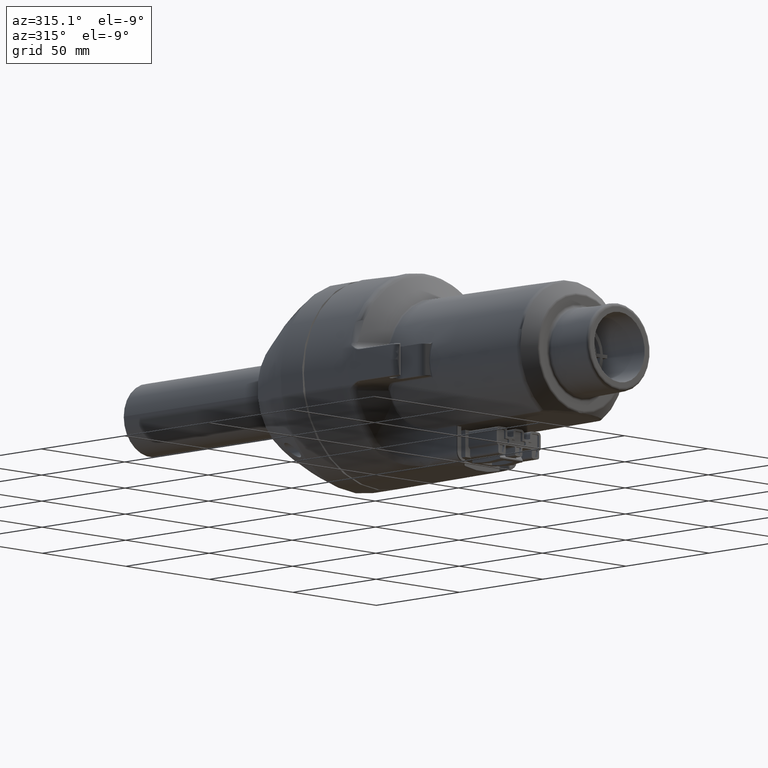
[diagram: clean part render]
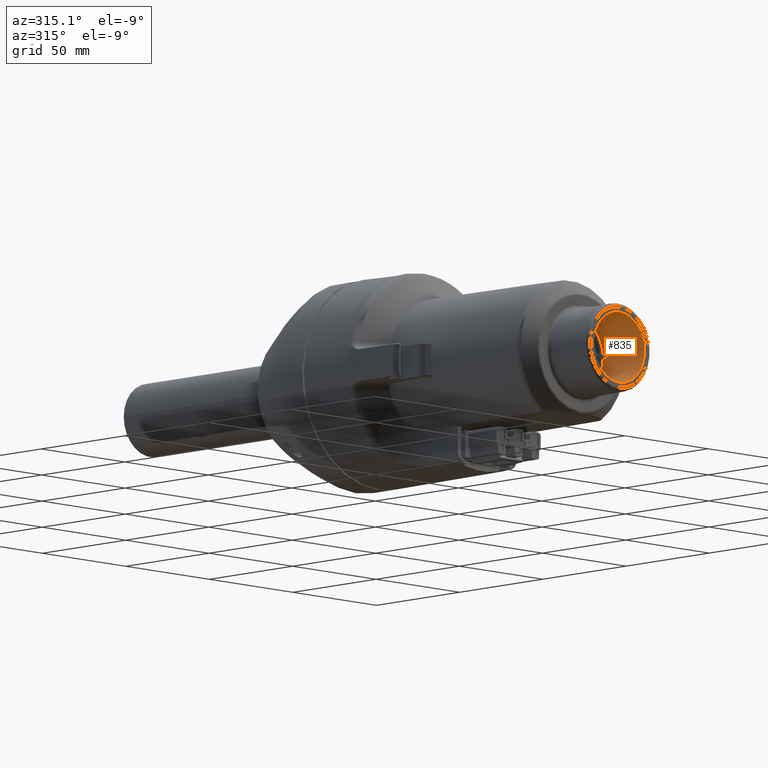
[diagram: same view with one face highlighted and labeled with its STEP entity id]
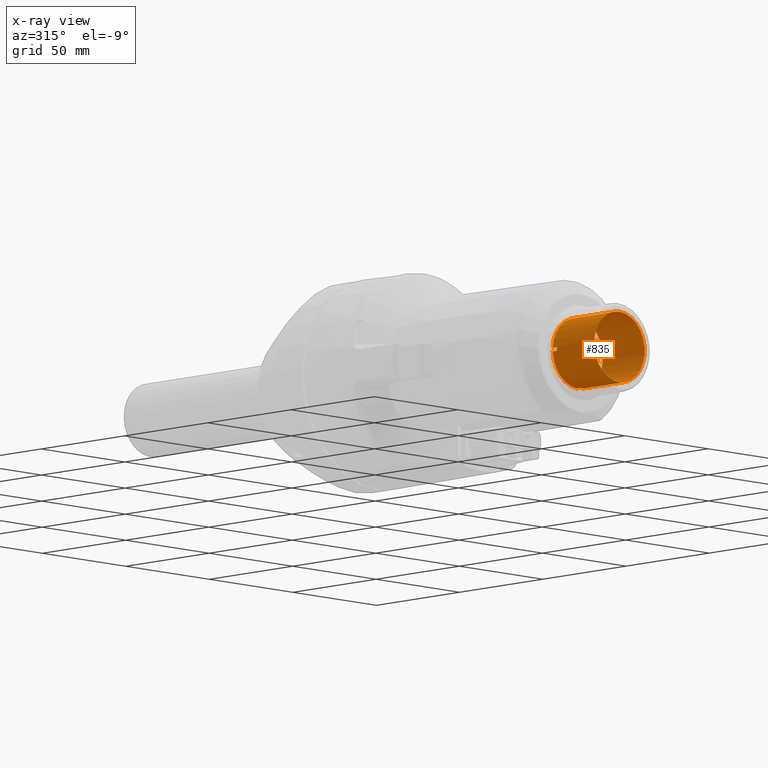
[diagram: x-ray of the same camera — body ghosted, the highlighted face saturated]
A machine part, auxiliary view. The second image highlights one B-rep face of the part: STEP entity #835.
The next image is the same camera in x-ray: the body ghosted, the highlighted face saturated — about 0% of this face is hidden behind the body in this view.
In plain terms, the highlighted cylindrical surface (bore or boss wall) has radius 15.1245 mm, axis along (-0, 1, -0).
Its self-contained STEP definition (entity closure, byte-faithful):
#835 = ADVANCED_FACE( '', ( #2260, #2261 ), #2262, .F. );
#2260 = FACE_OUTER_BOUND( '', #4825, .T. );
#2261 = FACE_OUTER_BOUND( '', #4826, .T. );
#2262 = CYLINDRICAL_SURFACE( '', #4827, 15.1244999999997 );
#4825 = EDGE_LOOP( '', ( #11385, #11386, #11387, #11388, #11389, #11390, #11391, #11392, #11393, #11394, #11395, #11396, #11397, #11398, #11399, #11400 ) );
#4826 = EDGE_LOOP( '', ( #11401 ) );
#4827 = AXIS2_PLACEMENT_3D( '', #11402, #11403, #11404 );
#11385 = ORIENTED_EDGE( '', *, *, #17066, .F. );
#11386 = ORIENTED_EDGE( '', *, *, #17067, .F. );
#11387 = ORIENTED_EDGE( '', *, *, #17068, .F. );
#11388 = ORIENTED_EDGE( '', *, *, #17069, .F. );
#11389 = ORIENTED_EDGE( '', *, *, #17070, .F. );
#11390 = ORIENTED_EDGE( '', *, *, #17047, .F. );
#11391 = ORIENTED_EDGE( '', *, *, #17071, .F. );
#11392 = ORIENTED_EDGE( '', *, *, #17072, .F. );
#11393 = ORIENTED_EDGE( '', *, *, #17073, .F. );
#11394 = ORIENTED_EDGE( '', *, *, #17074, .F. );
#11395 = ORIENTED_EDGE( '', *, *, #17075, .F. );
#11396 = ORIENTED_EDGE( '', *, *, #17076, .F. );
#11397 = ORIENTED_EDGE( '', *, *, #17077, .F. );
#11398 = ORIENTED_EDGE( '', *, *, #17078, .F. );
#11399 = ORIENTED_EDGE( '', *, *, #17079, .F. );
#11400 = ORIENTED_EDGE( '', *, *, #17080, .F. );
#11401 = ORIENTED_EDGE( '', *, *, #17081, .F. );
#11402 = CARTESIAN_POINT( '', ( 4.10216834365808E-011, 48.1236381961938, 4.11142542702602E-011 ) );
#11403 = DIRECTION( '', ( -0.000000000000000, 1.00000000000000, -0.000000000000000 ) );
#11404 = DIRECTION( '', ( 0.000000000000000, 0.000000000000000, 1.00000000000000 ) );
#17047 = EDGE_CURVE( '', #19833, #19834, #19835, .T. );
#17066 = EDGE_CURVE( '', #19866, #19867, #19868, .T. );
#17067 = EDGE_CURVE( '', #19869, #19866, #19870, .T. );
#17068 = EDGE_CURVE( '', #19871, #19869, #19872, .T. );
#17069 = EDGE_CURVE( '', #19873, #19871, #19874, .T. );
#17070 = EDGE_CURVE( '', #19834, #19873, #19875, .T. );
#17071 = EDGE_CURVE( '', #19876, #19833, #19877, .T. );
#17072 = EDGE_CURVE( '', #19878, #19876, #19879, .F. );
#17073 = EDGE_CURVE( '', #19880, #19878, #19881, .T. );
#17074 = EDGE_CURVE( '', #19882, #19880, #19883, .T. );
#17075 = EDGE_CURVE( '', #19884, #19882, #19885, .T. );
#17076 = EDGE_CURVE( '', #19886, #19884, #19887, .T. );
#17077 = EDGE_CURVE( '', #19888, #19886, #19889, .T. );
#17078 = EDGE_CURVE( '', #19890, #19888, #19891, .T. );
#17079 = EDGE_CURVE( '', #19892, #19890, #19893, .T. );
#17080 = EDGE_CURVE( '', #19867, #19892, #19894, .T. );
#17081 = EDGE_CURVE( '', #19895, #19895, #19896, .T. );
#19833 = VERTEX_POINT( '', #23998 );
#19834 = VERTEX_POINT( '', #23999 );
#19835 = LINE( '', #24000, #24001 );
#19866 = VERTEX_POINT( '', #24042 );
#19867 = VERTEX_POINT( '', #24043 );
#19868 = CIRCLE( '', #24044, 15.1244999999997 );
#19869 = VERTEX_POINT( '', #24045 );
#19870 = LINE( '', #24046, #24047 );
#19871 = VERTEX_POINT( '', #24048 );
#19872 = CIRCLE( '', #24049, 15.1244999999997 );
#19873 = VERTEX_POINT( '', #24050 );
#19874 = LINE( '', #24051, #24052 );
#19875 = CIRCLE( '', #24053, 15.1244999999997 );
#19876 = VERTEX_POINT( '', #24054 );
#19877 = CIRCLE( '', #24055, 15.1244999999997 );
#19878 = VERTEX_POINT( '', #24056 );
#19879 = LINE( '', #24057, #24058 );
#19880 = VERTEX_POINT( '', #24059 );
#19881 = CIRCLE( '', #24060, 15.1244999999997 );
#19882 = VERTEX_POINT( '', #24061 );
#19883 = LINE( '', #24062, #24063 );
#19884 = VERTEX_POINT( '', #24064 );
#19885 = CIRCLE( '', #24065, 15.1244999999997 );
#19886 = VERTEX_POINT( '', #24066 );
#19887 = LINE( '', #24067, #24068 );
#19888 = VERTEX_POINT( '', #24069 );
#19889 = CIRCLE( '', #24070, 15.1244999999997 );
#19890 = VERTEX_POINT( '', #24071 );
#19891 = LINE( '', #24072, #24073 );
#19892 = VERTEX_POINT( '', #24074 );
#19893 = CIRCLE( '', #24075, 15.1244999999997 );
#19894 = LINE( '', #24076, #24077 );
#19895 = VERTEX_POINT( '', #24078 );
#19896 = CIRCLE( '', #24079, 15.1244999999997 );
#23998 = CARTESIAN_POINT( '', ( 15.1058928981792, -121.732483002391, -0.749999999958900 ) );
#23999 = CARTESIAN_POINT( '', ( 15.1058928981792, -124.200000000011, -0.749999999958900 ) );
#24000 = CARTESIAN_POINT( '', ( 15.1058928981792, -121.732483002391, -0.749999999958900 ) );
#24001 = VECTOR( '', #30167, 1000.00000000000 );
#24042 = CARTESIAN_POINT( '', ( 0.750000000041450, -124.200000000011, 15.1058928981792 ) );
#24043 = CARTESIAN_POINT( '', ( -0.749999999958646, -124.200000000011, 15.1058928981792 ) );
#24044 = AXIS2_PLACEMENT_3D( '', #30190, #30191, #30192 );
#24045 = CARTESIAN_POINT( '', ( 0.750000000041450, -121.732483002391, 15.1058928981792 ) );
#24046 = CARTESIAN_POINT( '', ( 0.750000000041450, -121.732483002391, 15.1058928981792 ) );
#24047 = VECTOR( '', #30193, 1000.00000000000 );
#24048 = CARTESIAN_POINT( '', ( 15.1058928981792, -121.732483002391, 0.750000000040942 ) );
#24049 = AXIS2_PLACEMENT_3D( '', #30194, #30195, #30196 );
#24050 = CARTESIAN_POINT( '', ( 15.1058928981792, -124.200000000011, 0.750000000040942 ) );
#24051 = CARTESIAN_POINT( '', ( 15.1058928981792, -124.200000000011, 0.750000000040942 ) );
#24052 = VECTOR( '', #30197, 1000.00000000000 );
#24053 = AXIS2_PLACEMENT_3D( '', #30198, #30199, #30200 );
#24054 = CARTESIAN_POINT( '', ( 0.750000000041577, -121.732483002391, -15.1058928980961 ) );
#24055 = AXIS2_PLACEMENT_3D( '', #30201, #30202, #30203 );
#24056 = CARTESIAN_POINT( '', ( 0.750000000041704, -124.200000000011, -15.1058928980961 ) );
#24057 = CARTESIAN_POINT( '', ( 0.750000000041704, -124.200000000011, -15.1058928980960 ) );
#24058 = VECTOR( '', #30204, 1000.00000000000 );
#24059 = CARTESIAN_POINT( '', ( -0.749999999958392, -124.200000000011, -15.1058928980961 ) );
#24060 = AXIS2_PLACEMENT_3D( '', #30205, #30206, #30207 );
#24061 = CARTESIAN_POINT( '', ( -0.749999999958519, -121.732483002391, -15.1058928980961 ) );
#24062 = CARTESIAN_POINT( '', ( -0.749999999958392, -121.732483002391, -15.1058928980961 ) );
#24063 = VECTOR( '', #30208, 1000.00000000000 );
#24064 = CARTESIAN_POINT( '', ( -15.1058928980954, -121.732483002391, -0.749999999958900 ) );
#24065 = AXIS2_PLACEMENT_3D( '', #30209, #30210, #30211 );
#24066 = CARTESIAN_POINT( '', ( -15.1058928980954, -124.200000000011, -0.749999999958900 ) );
#24067 = CARTESIAN_POINT( '', ( -15.1058928980954, -124.200000000011, -0.749999999958900 ) );
#24068 = VECTOR( '', #30212, 1000.00000000000 );
#24069 = CARTESIAN_POINT( '', ( -15.1058928980954, -124.200000000011, 0.750000000040942 ) );
#24070 = AXIS2_PLACEMENT_3D( '', #30213, #30214, #30215 );
#24071 = CARTESIAN_POINT( '', ( -15.1058928980954, -121.732483002391, 0.750000000040942 ) );
#24072 = CARTESIAN_POINT( '', ( -15.1058928980954, -121.732483002391, 0.750000000040942 ) );
#24073 = VECTOR( '', #30216, 1000.00000000000 );
#24074 = CARTESIAN_POINT( '', ( -0.749999999958646, -121.732483002391, 15.1058928981792 ) );
#24075 = AXIS2_PLACEMENT_3D( '', #30217, #30218, #30219 );
#24076 = CARTESIAN_POINT( '', ( -0.749999999958646, -124.200000000011, 15.1058928981792 ) );
#24077 = VECTOR( '', #30220, 1000.00000000000 );
#24078 = CARTESIAN_POINT( '', ( 4.13976584966688E-011, -146.699999999997, 15.1245000000407 ) );
#24079 = AXIS2_PLACEMENT_3D( '', #30221, #30222, #30223 );
#30167 = DIRECTION( '', ( 0.000000000000000, -1.00000000000000, 0.000000000000000 ) );
#30190 = CARTESIAN_POINT( '', ( 4.13542374881592E-011, -124.200000000011, 4.10286615629090E-011 ) );
#30191 = DIRECTION( '', ( 0.000000000000000, -1.00000000000000, 0.000000000000000 ) );
#30192 = DIRECTION( '', ( 2.66972376031300E-014, 0.000000000000000, 1.00000000000000 ) );
#30193 = DIRECTION( '', ( 0.000000000000000, -1.00000000000000, 0.000000000000000 ) );
#30194 = CARTESIAN_POINT( '', ( 4.13494756181046E-011, -121.732483002391, 4.10298871722434E-011 ) );
#30195 = DIRECTION( '', ( 0.000000000000000, -1.00000000000000, 0.000000000000000 ) );
#30196 = DIRECTION( '', ( 0.998769737719426, 0.000000000000000, 0.0495884161459913 ) );
#30197 = DIRECTION( '', ( 0.000000000000000, 1.00000000000000, 0.000000000000000 ) );
#30198 = CARTESIAN_POINT( '', ( 4.13542374881592E-011, -124.200000000011, 4.10286615629090E-011 ) );
#30199 = DIRECTION( '', ( 0.000000000000000, -1.00000000000000, 0.000000000000000 ) );
#30200 = DIRECTION( '', ( 0.998769737719426, 0.000000000000000, -0.0495884161459913 ) );
#30201 = CARTESIAN_POINT( '', ( 4.13494756181046E-011, -121.732483002391, 4.10298871722434E-011 ) );
#30202 = DIRECTION( '', ( 0.000000000000000, -1.00000000000000, 0.000000000000000 ) );
#30203 = DIRECTION( '', ( 0.0495884161459913, 0.000000000000000, -0.998769737719426 ) );
#30204 = DIRECTION( '', ( 0.000000000000000, -1.00000000000000, 0.000000000000000 ) );
#30205 = CARTESIAN_POINT( '', ( 4.13542374881592E-011, -124.200000000011, 4.10286615629090E-011 ) );
#30206 = DIRECTION( '', ( 0.000000000000000, -1.00000000000000, -0.000000000000000 ) );
#30207 = DIRECTION( '', ( -0.0495885207022278, 0.000000000000000, -0.998769732528256 ) );
#30208 = DIRECTION( '', ( 0.000000000000000, -1.00000000000000, 0.000000000000000 ) );
#30209 = CARTESIAN_POINT( '', ( 4.13494756181046E-011, -121.732483002391, 4.10298871722434E-011 ) );
#30210 = DIRECTION( '', ( 0.000000000000000, -1.00000000000000, -0.000000000000000 ) );
#30211 = DIRECTION( '', ( -0.998769737719426, 0.000000000000000, -0.0495884161459913 ) );
#30212 = DIRECTION( '', ( 0.000000000000000, 1.00000000000000, 0.000000000000000 ) );
#30213 = CARTESIAN_POINT( '', ( 4.13542374881592E-011, -124.200000000011, 4.10286615629090E-011 ) );
#30214 = DIRECTION( '', ( 0.000000000000000, -1.00000000000000, 0.000000000000000 ) );
#30215 = DIRECTION( '', ( -0.998769737719426, 0.000000000000000, 0.0495884161459913 ) );
#30216 = DIRECTION( '', ( 0.000000000000000, -1.00000000000000, 0.000000000000000 ) );
#30217 = CARTESIAN_POINT( '', ( 4.13494756181046E-011, -121.732483002391, 4.10298871722434E-011 ) );
#30218 = DIRECTION( '', ( 0.000000000000000, -1.00000000000000, 0.000000000000000 ) );
#30219 = DIRECTION( '', ( -0.0495884161459913, 0.000000000000000, 0.998769737719426 ) );
#30220 = DIRECTION( '', ( 0.000000000000000, 1.00000000000000, 0.000000000000000 ) );
#30221 = CARTESIAN_POINT( '', ( 4.13976584966688E-011, -146.699999999997, 4.10174858708586E-011 ) );
#30222 = DIRECTION( '', ( 0.000000000000000, 1.00000000000000, 0.000000000000000 ) );
#30223 = DIRECTION( '', ( 0.000000000000000, 0.000000000000000, 1.00000000000000 ) );